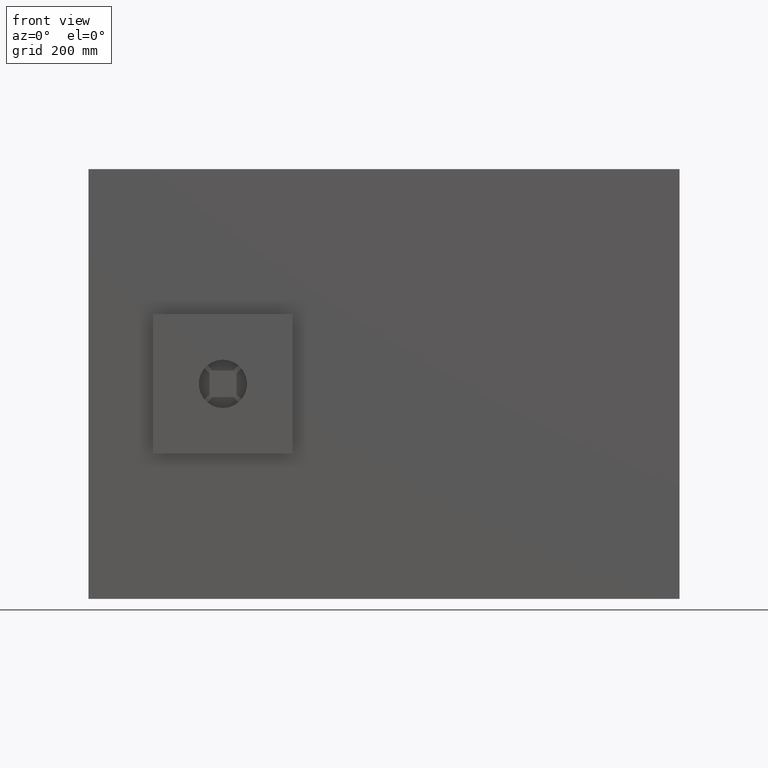
[diagram: clean part render]
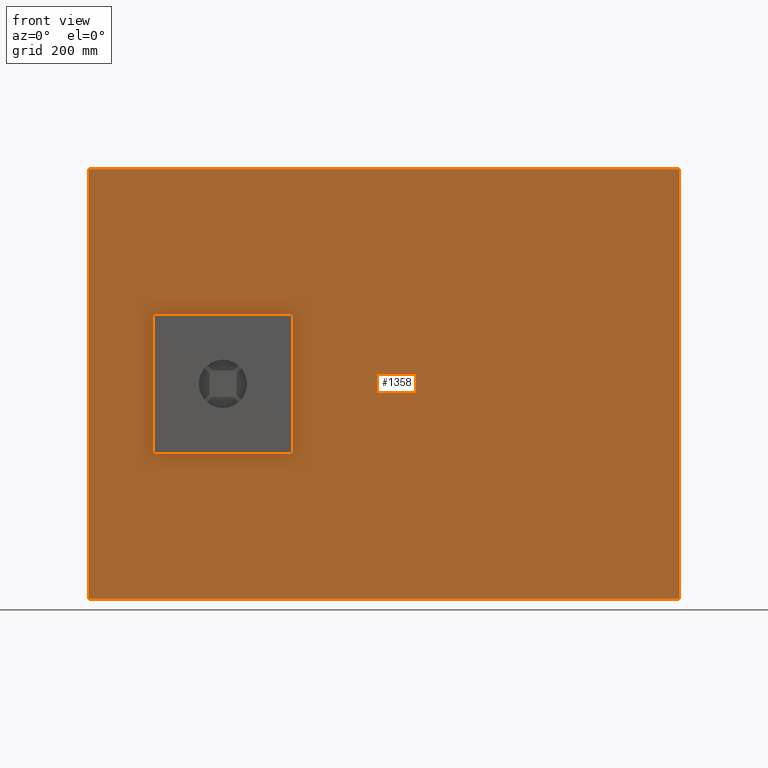
[diagram: same view with one face highlighted and labeled with its STEP entity id]
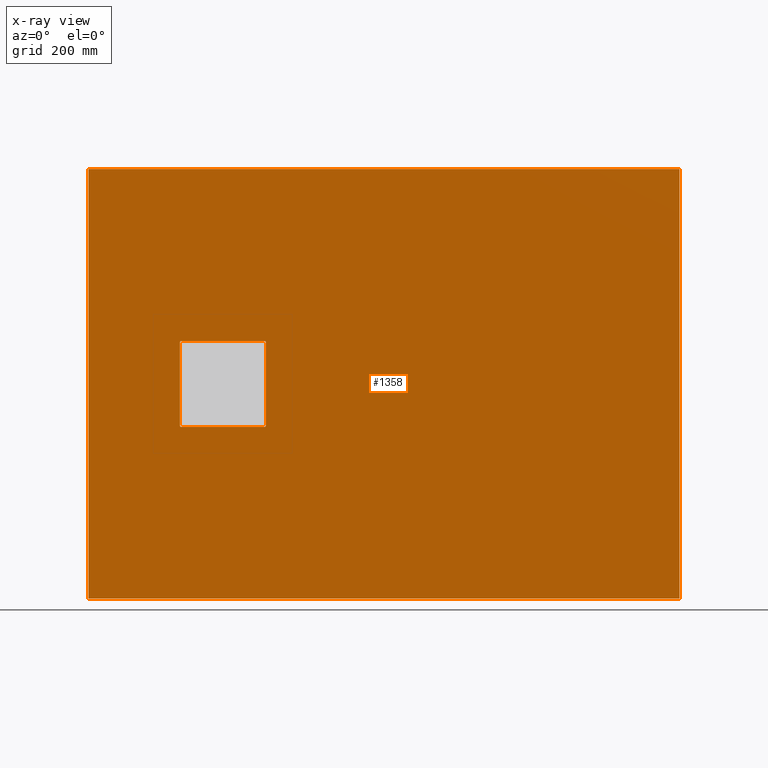
[diagram: x-ray of the same camera — body ghosted, the highlighted face saturated]
A machine part, front view. The second image highlights one B-rep face of the part: STEP entity #1358.
The next image is the same camera in x-ray: the body ghosted, the highlighted face saturated — about 0% of this face is hidden behind the body in this view.
In plain terms, the highlighted planar face has unit normal (0, 1, 0).
Its self-contained STEP definition (entity closure, byte-faithful):
#17 = CARTESIAN_POINT ( 'NONE',  ( 549.9999999999996600, 0.0000000000000000000, -399.9999999999998900 ) ) ;
#39 = LINE ( 'NONE', #794, #98 ) ;
#71 = LINE ( 'NONE', #2937, #402 ) ;
#72 = CARTESIAN_POINT ( 'NONE',  ( -220.0000000000002600, 0.0000000000000000000, -77.49999999999990100 ) ) ;
#98 = VECTOR ( 'NONE', #554, 1000.000000000000000 ) ;
#134 = CARTESIAN_POINT ( 'NONE',  ( -377.5000000000003400, 0.0000000000000000000, 77.50000000000019900 ) ) ;
#162 = CARTESIAN_POINT ( 'NONE',  ( -380.0000000000003400, 0.0000000000000000000, 77.50000000000019900 ) ) ;
#181 = VECTOR ( 'NONE', #2328, 1000.000000000000000 ) ;
#187 = CARTESIAN_POINT ( 'NONE',  ( -222.5000000000002600, 0.0000000000000000000, 77.50000000000019900 ) ) ;
#195 = CARTESIAN_POINT ( 'NONE',  ( -377.5000000000003400, 0.0000000000000000000, 80.00000000000019900 ) ) ;
#199 = DIRECTION ( 'NONE',  ( 0.0000000000000000000, 1.000000000000000000, 0.0000000000000000000 ) ) ;
#212 = AXIS2_PLACEMENT_3D ( 'NONE', #3080, #1263, #891 ) ;
#213 = DIRECTION ( 'NONE',  ( 0.0000000000000000000, 0.0000000000000000000, 1.000000000000000000 ) ) ;
#246 = LINE ( 'NONE', #2057, #181 ) ;
#258 = ORIENTED_EDGE ( 'NONE', *, *, #2839, .T. ) ;
#294 = CIRCLE ( 'NONE', #1007, 2.499999999999988500 ) ;
#323 = CARTESIAN_POINT ( 'NONE',  ( -550.0000000000002300, 0.0000000000000000000, 400.0000000000001100 ) ) ;
#402 = VECTOR ( 'NONE', #2655, 1000.000000000000000 ) ;
#408 = VECTOR ( 'NONE', #781, 1000.000000000000000 ) ;
#535 = EDGE_CURVE ( 'NONE', #1571, #1505, #1099, .T. ) ;
#549 = DIRECTION ( 'NONE',  ( 1.000000000000000000, 0.0000000000000000000, 0.0000000000000000000 ) ) ;
#554 = DIRECTION ( 'NONE',  ( -1.000000000000000000, -0.0000000000000000000, -0.0000000000000000000 ) ) ;
#560 = FACE_OUTER_BOUND ( 'NONE', #2152, .T. ) ;
#581 = FACE_BOUND ( 'NONE', #1382, .T. ) ;
#700 = CIRCLE ( 'NONE', #2911, 2.500000000000002200 ) ;
#704 = CIRCLE ( 'NONE', #2874, 2.500000000000002200 ) ;
#729 = CARTESIAN_POINT ( 'NONE',  ( -377.5000000000003400, 0.0000000000000000000, -79.99999999999984400 ) ) ;
#748 = CARTESIAN_POINT ( 'NONE',  ( -380.0000000000003400, 0.0000000000000000000, -77.49999999999984400 ) ) ;
#781 = DIRECTION ( 'NONE',  ( 0.0000000000000000000, 0.0000000000000000000, 1.000000000000000000 ) ) ;
#791 = LINE ( 'NONE', #1582, #923 ) ;
#794 = CARTESIAN_POINT ( 'NONE',  ( -550.0000000000003400, 0.0000000000000000000, -399.9999999999998900 ) ) ;
#880 = CARTESIAN_POINT ( 'NONE',  ( -377.5000000000003400, 0.0000000000000000000, 80.00000000000019900 ) ) ;
#891 = DIRECTION ( 'NONE',  ( 0.0000000000000000000, 0.0000000000000000000, -1.000000000000000000 ) ) ;
#919 = CARTESIAN_POINT ( 'NONE',  ( -550.0000000000002300, 0.0000000000000000000, 400.0000000000001100 ) ) ;
#923 = VECTOR ( 'NONE', #1490, 1000.000000000000000 ) ;
#974 = VECTOR ( 'NONE', #1844, 1000.000000000000000 ) ;
#1007 = AXIS2_PLACEMENT_3D ( 'NONE', #187, #199, #213 ) ;
#1099 = LINE ( 'NONE', #880, #1108 ) ;
#1103 = DIRECTION ( 'NONE',  ( 0.0000000000000000000, 1.000000000000000000, 0.0000000000000000000 ) ) ;
#1108 = VECTOR ( 'NONE', #1309, 1000.000000000000000 ) ;
#1152 = CARTESIAN_POINT ( 'NONE',  ( -220.0000000000002600, 0.0000000000000000000, 77.50000000000019900 ) ) ;
#1191 = EDGE_CURVE ( 'NONE', #2849, #1571, #704, .T. ) ;
#1202 = LINE ( 'NONE', #748, #408 ) ;
#1248 = CARTESIAN_POINT ( 'NONE',  ( -220.0000000000002600, 0.0000000000000000000, -77.49999999999988600 ) ) ;
#1263 = DIRECTION ( 'NONE',  ( 0.0000000000000000000, 1.000000000000000000, -0.0000000000000000000 ) ) ;
#1284 = ORIENTED_EDGE ( 'NONE', *, *, #2827, .F. ) ;
#1309 = DIRECTION ( 'NONE',  ( 1.000000000000000000, 0.0000000000000000000, -8.953411488912548500E-017 ) ) ;
#1330 = CARTESIAN_POINT ( 'NONE',  ( -550.0000000000003400, 0.0000000000000000000, -399.9999999999998900 ) ) ;
#1337 = DIRECTION ( 'NONE',  ( 0.0000000000000000000, 1.000000000000000000, 0.0000000000000000000 ) ) ;
#1358 = ADVANCED_FACE ( 'NONE', ( #581, #560 ), #3280, .F. ) ;
#1382 = EDGE_LOOP ( 'NONE', ( #2387, #258, #2754, #1701, #1933, #1728, #2320, #1826 ) ) ;
#1484 = VERTEX_POINT ( 'NONE', #1152 ) ;
#1490 = DIRECTION ( 'NONE',  ( -1.387778780781445700E-016, -0.0000000000000000000, -1.000000000000000000 ) ) ;
#1505 = VERTEX_POINT ( 'NONE', #3149 ) ;
#1522 = VECTOR ( 'NONE', #549, 1000.000000000000000 ) ;
#1560 = VERTEX_POINT ( 'NONE', #3122 ) ;
#1571 = VERTEX_POINT ( 'NONE', #195 ) ;
#1582 = CARTESIAN_POINT ( 'NONE',  ( 549.9999999999996600, 0.0000000000000000000, -399.9999999999998900 ) ) ;
#1590 = CARTESIAN_POINT ( 'NONE',  ( -377.5000000000003400, 0.0000000000000000000, -77.49999999999984400 ) ) ;
#1615 = ORIENTED_EDGE ( 'NONE', *, *, #2012, .F. ) ;
#1701 = ORIENTED_EDGE ( 'NONE', *, *, #2775, .T. ) ;
#1718 = CARTESIAN_POINT ( 'NONE',  ( -550.0000000000002300, 0.0000000000000000000, 400.0000000000001100 ) ) ;
#1728 = ORIENTED_EDGE ( 'NONE', *, *, #2759, .T. ) ;
#1826 = ORIENTED_EDGE ( 'NONE', *, *, #1191, .T. ) ;
#1838 = EDGE_CURVE ( 'NONE', #3299, #2093, #246, .T. ) ;
#1844 = DIRECTION ( 'NONE',  ( -0.0000000000000000000, -0.0000000000000000000, -1.000000000000000000 ) ) ;
#1901 = VERTEX_POINT ( 'NONE', #72 ) ;
#1933 = ORIENTED_EDGE ( 'NONE', *, *, #2783, .T. ) ;
#2012 = EDGE_CURVE ( 'NONE', #2150, #3299, #39, .T. ) ;
#2013 = ORIENTED_EDGE ( 'NONE', *, *, #2722, .F. ) ;
#2057 = CARTESIAN_POINT ( 'NONE',  ( -550.0000000000003400, 0.0000000000000000000, -399.9999999999998900 ) ) ;
#2093 = VERTEX_POINT ( 'NONE', #323 ) ;
#2123 = DIRECTION ( 'NONE',  ( 0.0000000000000000000, 0.0000000000000000000, 1.000000000000000000 ) ) ;
#2150 = VERTEX_POINT ( 'NONE', #17 ) ;
#2152 = EDGE_LOOP ( 'NONE', ( #2615, #1615, #1284, #2013 ) ) ;
#2266 = VERTEX_POINT ( 'NONE', #729 ) ;
#2292 = CARTESIAN_POINT ( 'NONE',  ( -222.5000000000003100, 0.0000000000000000000, -79.99999999999988600 ) ) ;
#2303 = AXIS2_PLACEMENT_3D ( 'NONE', #919, #1337, #3027 ) ;
#2320 = ORIENTED_EDGE ( 'NONE', *, *, #2973, .T. ) ;
#2328 = DIRECTION ( 'NONE',  ( 1.387778780781445700E-016, 0.0000000000000000000, 1.000000000000000000 ) ) ;
#2330 = VERTEX_POINT ( 'NONE', #3110 ) ;
#2387 = ORIENTED_EDGE ( 'NONE', *, *, #535, .T. ) ;
#2568 = EDGE_CURVE ( 'NONE', #1484, #1901, #3273, .T. ) ;
#2615 = ORIENTED_EDGE ( 'NONE', *, *, #1838, .F. ) ;
#2655 = DIRECTION ( 'NONE',  ( -1.000000000000000000, -0.0000000000000000000, 2.686023446673765400E-016 ) ) ;
#2722 = EDGE_CURVE ( 'NONE', #2093, #2330, #3079, .T. ) ;
#2754 = ORIENTED_EDGE ( 'NONE', *, *, #2568, .T. ) ;
#2759 = EDGE_CURVE ( 'NONE', #2266, #1560, #700, .T. ) ;
#2775 = EDGE_CURVE ( 'NONE', #1901, #3212, #2944, .T. ) ;
#2783 = EDGE_CURVE ( 'NONE', #3212, #2266, #71, .T. ) ;
#2827 = EDGE_CURVE ( 'NONE', #2330, #2150, #791, .T. ) ;
#2839 = EDGE_CURVE ( 'NONE', #1505, #1484, #294, .T. ) ;
#2849 = VERTEX_POINT ( 'NONE', #162 ) ;
#2874 = AXIS2_PLACEMENT_3D ( 'NONE', #134, #3164, #3002 ) ;
#2911 = AXIS2_PLACEMENT_3D ( 'NONE', #1590, #1103, #2123 ) ;
#2937 = CARTESIAN_POINT ( 'NONE',  ( -377.5000000000003400, 0.0000000000000000000, -79.99999999999984400 ) ) ;
#2944 = CIRCLE ( 'NONE', #212, 2.500000000000030200 ) ;
#2973 = EDGE_CURVE ( 'NONE', #1560, #2849, #1202, .T. ) ;
#3002 = DIRECTION ( 'NONE',  ( 0.0000000000000000000, 0.0000000000000000000, 1.000000000000000000 ) ) ;
#3027 = DIRECTION ( 'NONE',  ( 0.0000000000000000000, -0.0000000000000000000, 1.000000000000000000 ) ) ;
#3079 = LINE ( 'NONE', #1718, #1522 ) ;
#3080 = CARTESIAN_POINT ( 'NONE',  ( -222.5000000000003100, 0.0000000000000000000, -77.49999999999988600 ) ) ;
#3110 = CARTESIAN_POINT ( 'NONE',  ( 549.9999999999997700, 0.0000000000000000000, 400.0000000000001100 ) ) ;
#3122 = CARTESIAN_POINT ( 'NONE',  ( -380.0000000000003400, 0.0000000000000000000, -77.49999999999984400 ) ) ;
#3149 = CARTESIAN_POINT ( 'NONE',  ( -222.5000000000002600, 0.0000000000000000000, 80.00000000000018500 ) ) ;
#3164 = DIRECTION ( 'NONE',  ( 0.0000000000000000000, 1.000000000000000000, 0.0000000000000000000 ) ) ;
#3212 = VERTEX_POINT ( 'NONE', #2292 ) ;
#3273 = LINE ( 'NONE', #1248, #974 ) ;
#3280 = PLANE ( 'NONE',  #2303 ) ;
#3299 = VERTEX_POINT ( 'NONE', #1330 ) ;